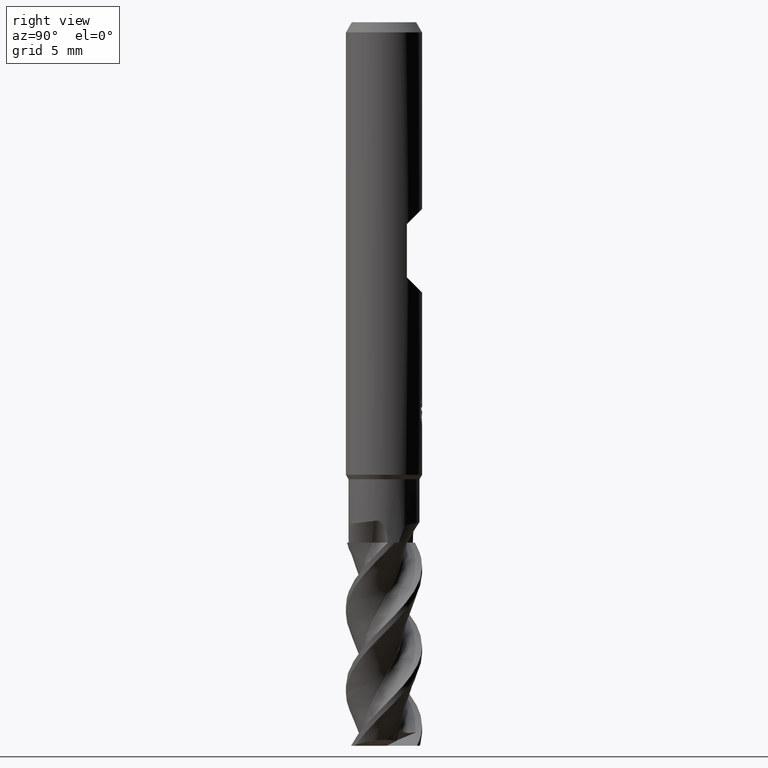
[diagram: clean part render]
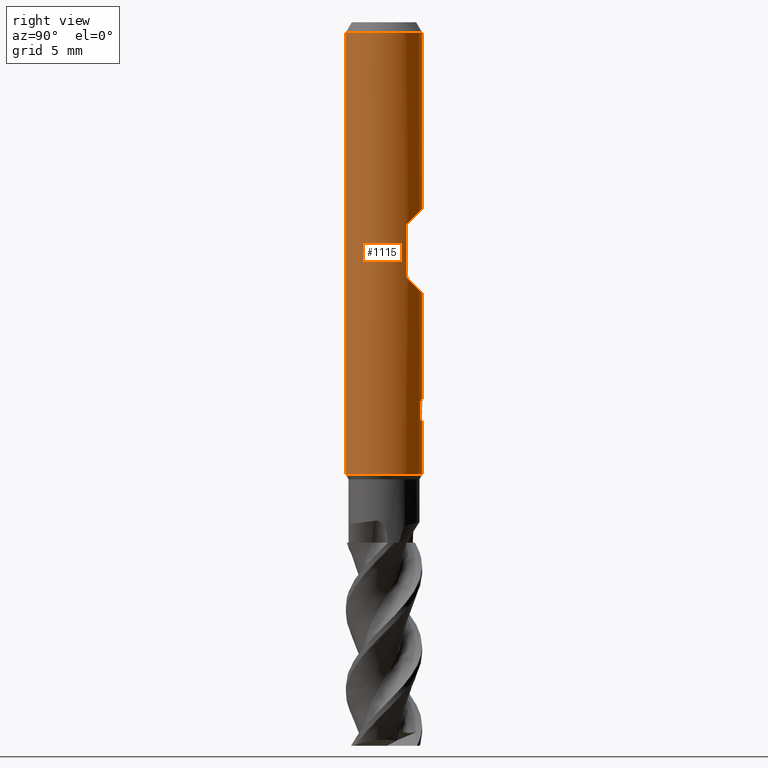
[diagram: same view with one face highlighted and labeled with its STEP entity id]
A machine part, right view. The second image highlights one B-rep face of the part: STEP entity #1115.
In plain terms, the highlighted cylindrical surface (partial cylindrical patch) has radius 3 mm, axis along (-0, -0, 1).
Its self-contained STEP definition (entity closure, byte-faithful):
#461=VERTEX_POINT('',#1328);
#519=VERTEX_POINT('',#1390);
#571=EDGE_CURVE('',#1045,#519,#1446,.T.);
#575=EDGE_CURVE('',#1007,#1061,#1450,.T.);
#609=EDGE_CURVE('',#461,#939,#1486,.T.);
#685=VERTEX_POINT('',#1570);
#735=EDGE_CURVE('',#1067,#1253,#1627,.T.);
#777=EDGE_CURVE('',#1185,#461,#1673,.T.);
#793=EDGE_CURVE('',#1157,#993,#1689,.T.);
#805=EDGE_CURVE('',#1185,#1007,#1703,.T.);
#897=VERTEX_POINT('',#1804);
#907=VERTEX_POINT('',#1814);
#909=EDGE_CURVE('',#897,#911,#1816,.T.);
#911=VERTEX_POINT('',#1818);
#921=EDGE_CURVE('',#907,#1157,#1829,.T.);
#939=VERTEX_POINT('',#1848);
#945=VERTEX_POINT('',#1857);
#993=VERTEX_POINT('',#1909);
#1007=VERTEX_POINT('',#1923);
#1011=EDGE_CURVE('',#1177,#945,#1928,.T.);
#1021=EDGE_CURVE('',#1253,#907,#1939,.T.);
#1045=VERTEX_POINT('',#1965);
#1061=VERTEX_POINT('',#1982);
#1067=VERTEX_POINT('',#1988);
#1071=EDGE_CURVE('',#993,#1045,#1992,.T.);
#1089=EDGE_CURVE('',#939,#911,#2010,.T.);
#1115=ADVANCED_FACE('',(#2038,#2039),#2040,.T.);
#1127=EDGE_CURVE('',#1061,#1131,#2053,.T.);
#1131=VERTEX_POINT('',#2058);
#1137=VERTEX_POINT('',#2064);
#1145=EDGE_CURVE('',#1137,#685,#2072,.T.);
#1157=VERTEX_POINT('',#2084);
#1175=EDGE_CURVE('',#897,#1131,#2105,.T.);
#1177=VERTEX_POINT('',#2107);
#1185=VERTEX_POINT('',#2116);
#1199=EDGE_CURVE('',#685,#1177,#2134,.T.);
#1217=EDGE_CURVE('',#945,#1067,#2153,.T.);
#1239=EDGE_CURVE('',#519,#1137,#2178,.T.);
#1253=VERTEX_POINT('',#2193);
#1328=CARTESIAN_POINT('',(2.4,1.8,-20.1));
#1390=CARTESIAN_POINT('',(0.0173204359070047,2.99995,-31.6743099672144));
#1446=LINE('',#3627,#3628);
#1450=CIRCLE('',#3635,3.0);
#1486=LINE('',#3872,#3873);
#1570=CARTESIAN_POINT('',(0.582364149245686,2.94293255064967,-30.5340141090597));
#1627=B_SPLINE_CURVE_WITH_KNOTS('',3,(#4604,#4605,#4606,#4607,#4608,#4609),.UNSPECIFIED.,.F.,.F.,(4,2,4),(0.413155597726241,0.826311195452482,1.23888540984236),.UNSPECIFIED.);
#1673=ELLIPSE('',#5013,4.24264068711929,3.0);
#1689=B_SPLINE_CURVE_WITH_KNOTS('',3,(#5091,#5092,#5093,#5094,#5095,#5096,#5097,#5098,#5099,#5100,#5101,#5102,#5103,#5104),.UNSPECIFIED.,.F.,.F.,(4,2,2,2,2,2,4),(2.091097645352,2.38959558480883,2.68809352426566,2.98659146372249,3.28432857408576,3.58206568444902,3.88185771191666),.UNSPECIFIED.);
#1703=LINE('',#5121,#5122);
#1804=CARTESIAN_POINT('',(0.0,3.0,-0.799999999999997));
#1814=CARTESIAN_POINT('',(0.0173204359069755,2.99995,-30.3397978605752));
#1816=LINE('',#6157,#6158);
#1818=CARTESIAN_POINT('',(-3.67381906146713E-016,3.0,-14.7));
#1829=LINE('',#6220,#6221);
#1848=CARTESIAN_POINT('',(2.4,1.8,-15.9));
#1857=CARTESIAN_POINT('',(0.891458520360562,2.86448978117859,-31.1808516898096));
#1909=CARTESIAN_POINT('',(0.382078323112377,2.97556988743461,-30.6076374206519));
#1923=CARTESIAN_POINT('',(0.0,3.0,-35.654));
#1928=B_SPLINE_CURVE_WITH_KNOTS('',3,(#6706,#6707,#6708,#6709,#6710,#6711),.UNSPECIFIED.,.F.,.F.,(4,2,4),(5.37052262242642,5.78309682294637,6.19625240627158),.UNSPECIFIED.);
#1939=B_SPLINE_CURVE_WITH_KNOTS('',3,(#6782,#6783,#6784,#6785,#6786,#6787,#6788,#6789,#6790,#6791,#6792,#6793,#6794,#6795,#6796,#6797,#6798,#6799,#6800,#6801,#6802,#6803,#6804,#6805,#6806,#6807,#6808),.UNSPECIFIED.,.F.,.F.,(4,2,3,2,2,2,2,2,2,2,2,2,4),(-0.361797878080094,-0.180898939040047,0.0,0.180898939040045,0.36179787808009,0.54316499674529,0.724532115410489,0.905110773244761,1.08568943107903,1.26650066090355,1.44731189072806,1.62812312055257,1.80893435037709),.UNSPECIFIED.);
#1965=CARTESIAN_POINT('',(0.017320435906985,2.99995,-30.7874691290817));
#1982=CARTESIAN_POINT('',(3.67381906146713E-016,-3.0,-35.654));
#1988=CARTESIAN_POINT('',(0.891458520360562,2.86448978117859,-29.9974599021333));
#1992=ELLIPSE('',#7423,3.34478529612858,3.0);
#2010=ELLIPSE('',#7540,4.24264068711928,3.0);
#2038=FACE_OUTER_BOUND('',#7679,.T.);
#2039=FACE_BOUND('',#7680,.T.);
#2040=CYLINDRICAL_SURFACE('',#7681,3.0);
#2053=LINE('',#8018,#8019);
#2058=CARTESIAN_POINT('',(3.67381906146713E-016,-3.0,-0.799999999999997));
#2064=CARTESIAN_POINT('',(0.193398861644812,2.99375965640438,-31.653955271205));
#2072=ELLIPSE('',#8067,9.14398372010932,3.0);
#2084=CARTESIAN_POINT('',(0.0173204359069938,2.99995,-30.6561258377872));
#2105=CIRCLE('',#8112,3.0);
#2107=CARTESIAN_POINT('',(0.582364149245685,2.94293255064967,-31.4932261365542));
#2116=CARTESIAN_POINT('',(-3.67381906146713E-016,3.0,-21.3));
#2134=LINE('',#8152,#8153);
#2153=LINE('',#8607,#8608);
#2178=B_SPLINE_CURVE_WITH_KNOTS('',3,(#8939,#8940,#8941,#8942,#8943,#8944,#8945,#8946,#8947,#8948),.UNSPECIFIED.,.F.,.F.,(4,2,2,2,4),(3.71798730591323,4.13127027719931,4.54460961578536,4.95794895437141,5.3705231927639),.UNSPECIFIED.);
#2193=CARTESIAN_POINT('',(0.532945602569763,2.95228199613478,-29.6541001845789));
#3627=CARTESIAN_POINT('',(0.017320435906985,2.99995,-30.6645073647412));
#3628=VECTOR('',#9993,1.0);
#3635=AXIS2_PLACEMENT_3D('',#9995,#9996,#9997);
#3872=CARTESIAN_POINT('',(2.4,1.8,-18.0));
#3873=VECTOR('',#10032,1.0);
#4604=CARTESIAN_POINT('',(0.98347033219128,2.8342170181021,-30.1718923016557));
#4605=CARTESIAN_POINT('',(0.927866853050183,2.8535113497582,-30.038317674708));
#4606=CARTESIAN_POINT('',(0.844490785540526,2.88038670496079,-29.9170171472775));
#4607=CARTESIAN_POINT('',(0.652975777169008,2.92974185755459,-29.7255884959489));
#4608=CARTESIAN_POINT('',(0.531685216531226,2.95558304183374,-29.6422417116512));
#4609=CARTESIAN_POINT('',(0.39811699544156,2.97346647163552,-29.5866780771524));
#5013=AXIS2_PLACEMENT_3D('',#10257,#10258,#10259);
#5091=CARTESIAN_POINT('',(-0.629727328037688,2.93316271153213,-29.5690913557644));
#5092=CARTESIAN_POINT('',(-0.670089755997728,2.92449721450026,-29.6662639601135));
#5093=CARTESIAN_POINT('',(-0.690061178540054,2.91955742705498,-29.7721316354559));
#5094=CARTESIAN_POINT('',(-0.690061178540054,2.91955742705498,-29.9711302617605));
#5095=CARTESIAN_POINT('',(-0.670089755997727,2.92449721450026,-30.0769979371029));
#5096=CARTESIAN_POINT('',(-0.589364900077661,2.94182820856402,-30.2713431458012));
#5097=CARTESIAN_POINT('',(-0.528629969212499,2.95390696563364,-30.3598560999866));
#5098=CARTESIAN_POINT('',(-0.388825924618277,2.97553438372319,-30.4994507471901));
#5099=CARTESIAN_POINT('',(-0.300374998568297,2.98650953771095,-30.5600152917628));
#5100=CARTESIAN_POINT('',(-0.10625246950245,2.99969577970094,-30.6404637231012));
#5101=CARTESIAN_POINT('',(-0.000555188223129263,3.0016411180253,-30.6603289843056));
#5102=CARTESIAN_POINT('',(0.198513504569518,2.99509240733468,-30.6603289843056));
#5103=CARTESIAN_POINT('',(0.304528894401636,2.98611319488251,-30.640217470731));
#5104=CARTESIAN_POINT('',(0.401676121348869,2.97298777218106,-30.5997873850085));
#5121=CARTESIAN_POINT('',(-3.67381906146713E-016,3.0,-18.227));
#5122=VECTOR('',#10286,1.0);
#6157=CARTESIAN_POINT('',(-3.67381906146713E-016,3.0,-18.227));
#6158=VECTOR('',#10401,1.0);
#6220=CARTESIAN_POINT('',(0.017320435906985,2.99995,-30.6645073647412));
#6221=VECTOR('',#10416,1.0);
#6706=CARTESIAN_POINT('',(0.398117010340557,2.97346646964069,-31.5916335040356));
#6707=CARTESIAN_POINT('',(0.531685226880307,2.95558303976684,-31.5360698713996));
#6708=CARTESIAN_POINT('',(0.652975783373712,2.92974185605895,-31.4527230899086));
#6709=CARTESIAN_POINT('',(0.844490785097963,2.88038670497133,-31.2612944450911));
#6710=CARTESIAN_POINT('',(0.927866849687467,2.85351135080825,-31.1399939218539));
#6711=CARTESIAN_POINT('',(0.983470326877138,2.8342170199461,-31.0064192995311));
#6782=CARTESIAN_POINT('',(0.443451175650266,2.96704416125113,-29.5298764058061));
#6783=CARTESIAN_POINT('',(0.485825230520439,2.96071098134951,-29.5723072631594));
#6784=CARTESIAN_POINT('',(0.522628634598451,2.95423041401874,-29.6260565977037));
#6785=CARTESIAN_POINT('',(0.571515479073374,2.94516350896329,-29.7440093998545));
#6786=CARTESIAN_POINT('',(0.58359092842081,2.94268952291351,-29.8082247886017));
#6787=CARTESIAN_POINT('',(0.58359092842081,2.94268952291351,-29.8685244349484));
#6788=CARTESIAN_POINT('',(0.58359092842081,2.94268952291351,-29.9288240812951));
#6789=CARTESIAN_POINT('',(0.571515479073372,2.94516350896329,-29.9930394700423));
#6790=CARTESIAN_POINT('',(0.522628634598447,2.95423041401874,-30.1109922721932));
#6791=CARTESIAN_POINT('',(0.485825230520438,2.96071098134951,-30.1647416067375));
#6792=CARTESIAN_POINT('',(0.400967453640912,2.97339373188344,-30.2497131355921));
#6793=CARTESIAN_POINT('',(0.347160591378599,2.98043595390805,-30.2866186343397));
#6794=CARTESIAN_POINT('',(0.229067490754342,2.99183004798448,-30.3356491335629));
#6795=CARTESIAN_POINT('',(0.164768311964613,2.99608182394725,-30.3477661750437));
#6796=CARTESIAN_POINT('',(0.0441927259273233,3.00027835150232,-30.3477661750437));
#6797=CARTESIAN_POINT('',(-0.0199849147074371,3.00051422459916,-30.3357432311485));
#6798=CARTESIAN_POINT('',(-0.138011899975599,2.99740516520178,-30.2868705536194));
#6799=CARTESIAN_POINT('',(-0.191865153226538,2.99416206152009,-30.2500238345305));
#6800=CARTESIAN_POINT('',(-0.276951356845971,2.9874941541864,-30.1650104084073));
#6801=CARTESIAN_POINT('',(-0.31385751762486,2.98363884435361,-30.1111404765947));
#6802=CARTESIAN_POINT('',(-0.362829872721119,2.97808021777493,-29.99303592618));
#6803=CARTESIAN_POINT('',(-0.374892551769671,2.97648376018208,-29.9287948448899));
#6804=CARTESIAN_POINT('',(-0.374892551769671,2.97648376018208,-29.8082540250069));
#6805=CARTESIAN_POINT('',(-0.362829872721119,2.97808021777493,-29.7440129437168));
#6806=CARTESIAN_POINT('',(-0.31385751762486,2.98363884435361,-29.6259083933022));
#6807=CARTESIAN_POINT('',(-0.276951356845971,2.9874941541864,-29.5720384614896));
#6808=CARTESIAN_POINT('',(-0.234380876478645,2.99083025341478,-29.5295043932883));
#7423=AXIS2_PLACEMENT_3D('',#10563,#10564,#10565);
#7540=AXIS2_PLACEMENT_3D('',#10568,#10569,#10570);
#7679=EDGE_LOOP('',(#10590,#10591,#10592,#10593,#10594,#10595,#10596,#10597));
#7680=EDGE_LOOP('',(#10598,#10599,#10600,#10601,#10602,#10603,#10604,#10605,#10606,#10607,#10608));
#7681=AXIS2_PLACEMENT_3D('',#10609,#10610,#10611);
#8018=CARTESIAN_POINT('',(3.67381906146713E-016,-3.0,-18.227));
#8019=VECTOR('',#10624,1.0);
#8067=AXIS2_PLACEMENT_3D('',#10633,#10634,#10635);
#8112=AXIS2_PLACEMENT_3D('',#10667,#10668,#10669);
#8152=CARTESIAN_POINT('',(0.582364149245686,2.94293255064967,-31.013620122807));
#8153=VECTOR('',#10727,1.0);
#8607=CARTESIAN_POINT('',(0.891458520360562,2.86448978117859,-30.5891557959714));
#8608=VECTOR('',#10741,1.0);
#8939=CARTESIAN_POINT('',(-1.0213107725762,2.82080206782039,-31.0063603909889));
#8940=CARTESIAN_POINT('',(-0.965748326062896,2.84091920915678,-31.139858656383));
#8941=CARTESIAN_POINT('',(-0.882474008253194,2.86898278727423,-31.2610393018291));
#8942=CARTESIAN_POINT('',(-0.691181971660375,2.92097462682348,-31.4524209134462));
#8943=CARTESIAN_POINT('',(-0.569939118101215,2.94845792845378,-31.5358242986056));
#8944=CARTESIAN_POINT('',(-0.302738780934602,2.98773894197887,-31.6471051738375));
#8945=CARTESIAN_POINT('',(-0.156684840798735,2.99907204453492,-31.6749145449035));
#8946=CARTESIAN_POINT('',(0.118614216879022,3.00080717863586,-31.6749145449035));
#8947=CARTESIAN_POINT('',(0.264548965222022,2.99134988491468,-31.6471974310104));
#8948=CARTESIAN_POINT('',(0.398117192990064,2.97346644518577,-31.5916337934181));
#9993=DIRECTION('',(0.0,0.0,-1.0));
#9995=CARTESIAN_POINT('',(0.0,0.0,-35.654));
#9996=DIRECTION('',(0.0,0.0,-1.0));
#9997=DIRECTION('',(0.0,1.0,0.0));
#10032=DIRECTION('',(-0.0,-0.0,1.0));
#10257=CARTESIAN_POINT('',(0.0,0.0,-18.3));
#10258=DIRECTION('',(0.0,-0.707106781186548,-0.707106781186547));
#10259=DIRECTION('',(0.0,0.707106781186547,-0.707106781186548));
#10286=DIRECTION('',(0.0,0.0,-1.0));
#10401=DIRECTION('',(0.0,0.0,-1.0));
#10416=DIRECTION('',(0.0,0.0,-1.0));
#10563=CARTESIAN_POINT('',(0.0,0.0,-30.7960083922181));
#10564=DIRECTION('',(-0.442195774284071,0.0,0.896918556617774));
#10565=DIRECTION('',(0.896918556617774,-0.0,0.442195774284071));
#10568=CARTESIAN_POINT('',(0.0,0.0,-17.7));
#10569=DIRECTION('',(0.0,-0.707106781186547,0.707106781186548));
#10570=DIRECTION('',(0.0,0.707106781186548,0.707106781186547));
#10590=ORIENTED_EDGE('',*,*,#909,.F.);
#10591=ORIENTED_EDGE('',*,*,#1175,.T.);
#10592=ORIENTED_EDGE('',*,*,#1127,.F.);
#10593=ORIENTED_EDGE('',*,*,#575,.F.);
#10594=ORIENTED_EDGE('',*,*,#805,.F.);
#10595=ORIENTED_EDGE('',*,*,#777,.T.);
#10596=ORIENTED_EDGE('',*,*,#609,.T.);
#10597=ORIENTED_EDGE('',*,*,#1089,.T.);
#10598=ORIENTED_EDGE('',*,*,#1071,.T.);
#10599=ORIENTED_EDGE('',*,*,#571,.T.);
#10600=ORIENTED_EDGE('',*,*,#1239,.T.);
#10601=ORIENTED_EDGE('',*,*,#1145,.T.);
#10602=ORIENTED_EDGE('',*,*,#1199,.T.);
#10603=ORIENTED_EDGE('',*,*,#1011,.T.);
#10604=ORIENTED_EDGE('',*,*,#1217,.T.);
#10605=ORIENTED_EDGE('',*,*,#735,.T.);
#10606=ORIENTED_EDGE('',*,*,#1021,.T.);
#10607=ORIENTED_EDGE('',*,*,#921,.T.);
#10608=ORIENTED_EDGE('',*,*,#793,.T.);
#10609=CARTESIAN_POINT('',(0.0,0.0,-18.227));
#10610=DIRECTION('',(-0.0,-0.0,1.0));
#10611=DIRECTION('',(0.0,1.0,0.0));
#10624=DIRECTION('',(-0.0,-0.0,1.0));
#10633=CARTESIAN_POINT('',(0.0,0.0,-32.2108053366801));
#10634=DIRECTION('',(0.944648353914092,0.0,-0.328084573619969));
#10635=DIRECTION('',(0.328084573619969,-0.0,0.944648353914092));
#10667=CARTESIAN_POINT('',(0.0,0.0,-0.799999999999997));
#10668=DIRECTION('',(0.0,0.0,-1.0));
#10669=DIRECTION('',(0.0,1.0,0.0));
#10727=DIRECTION('',(0.0,0.0,-1.0));
#10741=DIRECTION('',(-0.0,-0.0,1.0));